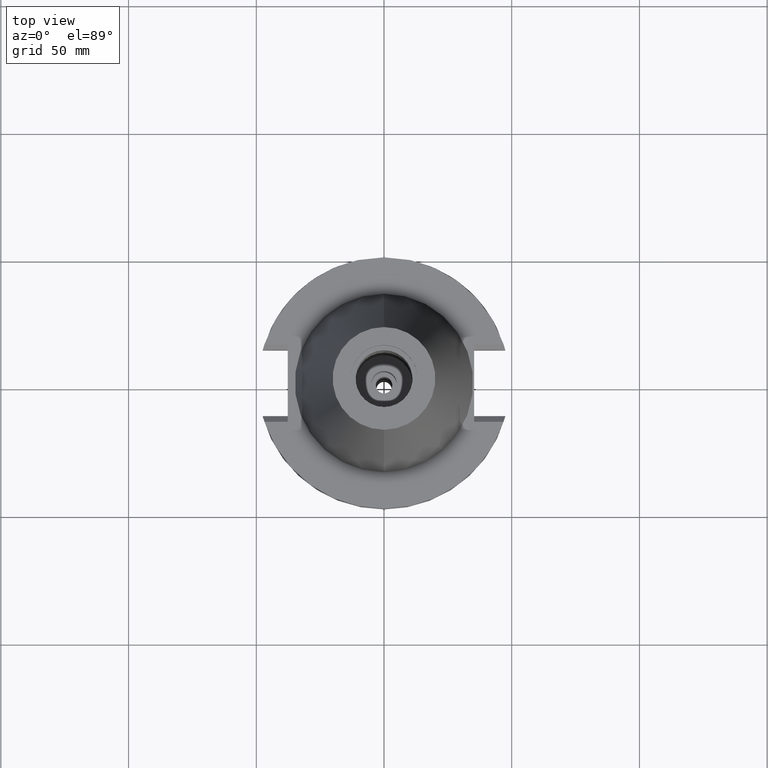
[diagram: clean part render]
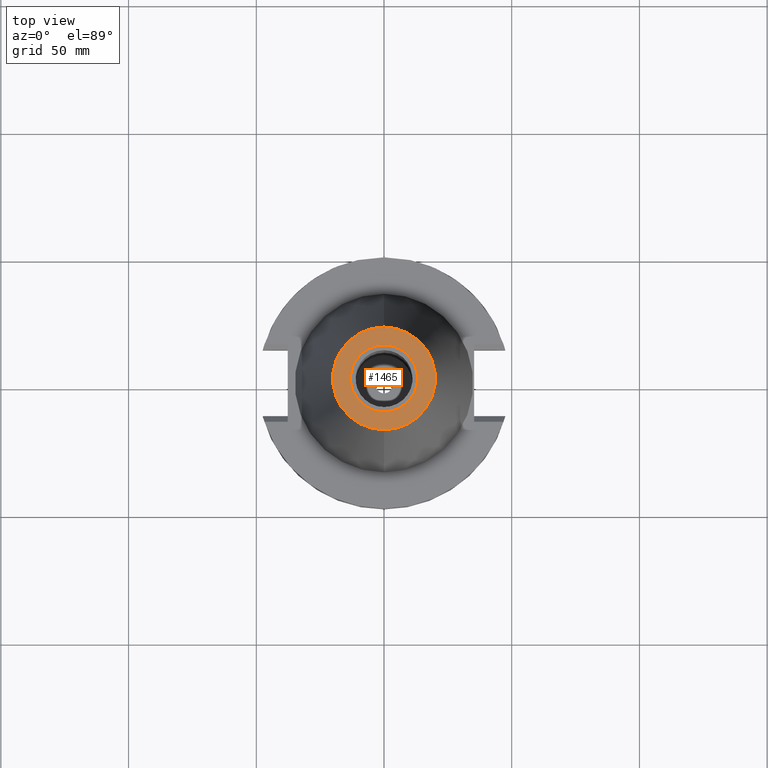
[diagram: same view with one face highlighted and labeled with its STEP entity id]
A machine part, top view. The second image highlights one B-rep face of the part: STEP entity #1465.
In plain terms, the highlighted planar face has unit normal (0, 0, -1).
Its self-contained STEP definition (entity closure, byte-faithful):
#17=CARTESIAN_POINT('',(0.E0,0.E0,1.016E2));
#18=DIRECTION('',(0.E0,0.E0,-1.E0));
#19=DIRECTION('',(0.E0,-1.E0,0.E0));
#20=AXIS2_PLACEMENT_3D('',#17,#18,#19);
#26=CARTESIAN_POINT('',(0.E0,0.E0,1.016E2));
#27=DIRECTION('',(0.E0,0.E0,-1.E0));
#28=DIRECTION('',(0.E0,1.E0,0.E0));
#29=AXIS2_PLACEMENT_3D('',#26,#27,#28);
#34=CARTESIAN_POINT('',(0.E0,1.398301715266E-14,1.016E2));
#35=DIRECTION('',(0.E0,0.E0,1.E0));
#36=DIRECTION('',(0.E0,-1.E0,0.E0));
#37=AXIS2_PLACEMENT_3D('',#34,#35,#36);
#42=CARTESIAN_POINT('',(0.E0,1.398301715266E-14,1.016E2));
#43=DIRECTION('',(0.E0,0.E0,1.E0));
#44=DIRECTION('',(0.E0,1.E0,0.E0));
#45=AXIS2_PLACEMENT_3D('',#42,#43,#44);
#1242=CARTESIAN_POINT('',(0.E0,-2.010832422388E1,1.016E2));
#1243=CARTESIAN_POINT('',(0.E0,2.010832422388E1,1.016E2));
#1244=VERTEX_POINT('',#1242);
#1245=VERTEX_POINT('',#1243);
#1246=CARTESIAN_POINT('',(0.E0,-1.3115E1,1.016E2));
#1247=CARTESIAN_POINT('',(0.E0,1.3115E1,1.016E2));
#1248=VERTEX_POINT('',#1246);
#1249=VERTEX_POINT('',#1247);
#1448=CARTESIAN_POINT('',(0.E0,1.244241147934E-14,1.016E2));
#1449=DIRECTION('',(0.E0,0.E0,-1.E0));
#1450=DIRECTION('',(0.E0,-1.E0,0.E0));
#1451=AXIS2_PLACEMENT_3D('',#1448,#1449,#1450);
#1452=PLANE('',#1451);
#1454=ORIENTED_EDGE('',*,*,#1453,.T.);
#1456=ORIENTED_EDGE('',*,*,#1455,.T.);
#1457=EDGE_LOOP('',(#1454,#1456));
#1458=FACE_OUTER_BOUND('',#1457,.F.);
#1460=ORIENTED_EDGE('',*,*,#1459,.T.);
#1462=ORIENTED_EDGE('',*,*,#1461,.T.);
#1463=EDGE_LOOP('',(#1460,#1462));
#1464=FACE_BOUND('',#1463,.F.);
#21=CIRCLE('',#20,2.010832422388E1);
#30=CIRCLE('',#29,2.010832422388E1);
#38=CIRCLE('',#37,1.3115E1);
#46=CIRCLE('',#45,1.3115E1);
#1453=EDGE_CURVE('',#1244,#1245,#21,.T.);
#1455=EDGE_CURVE('',#1245,#1244,#30,.T.);
#1459=EDGE_CURVE('',#1248,#1249,#38,.T.);
#1461=EDGE_CURVE('',#1249,#1248,#46,.T.);
#1465=ADVANCED_FACE('',(#1458,#1464),#1452,.F.);